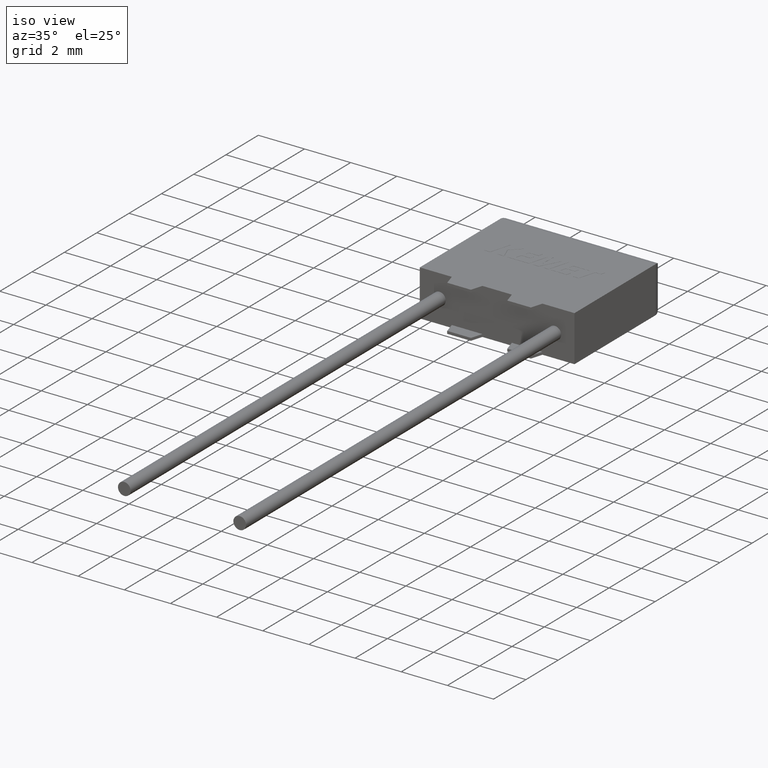
[diagram: clean part render]
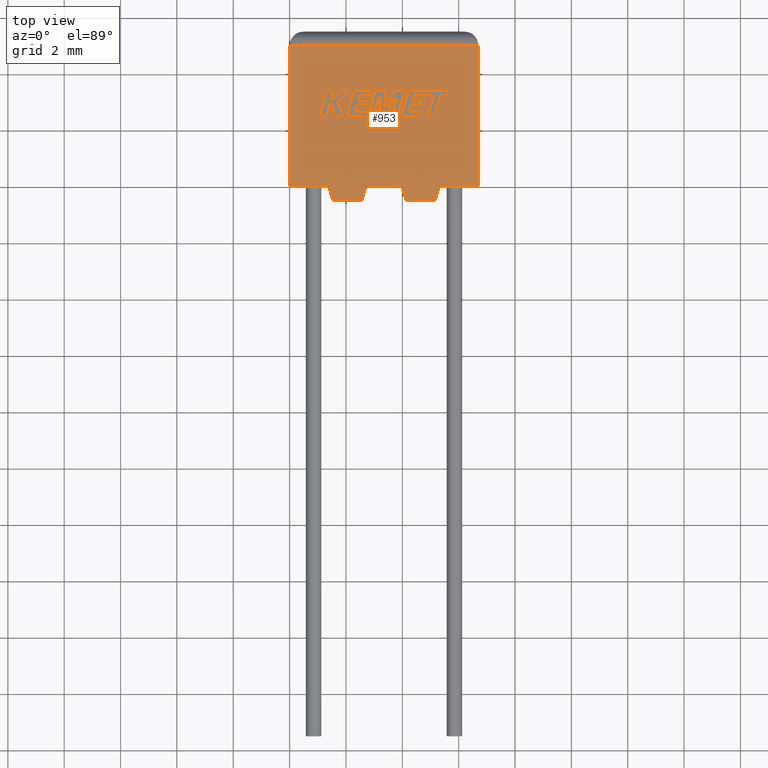
[diagram: tour spotlight — one face highlighted and labeled with its STEP entity id]
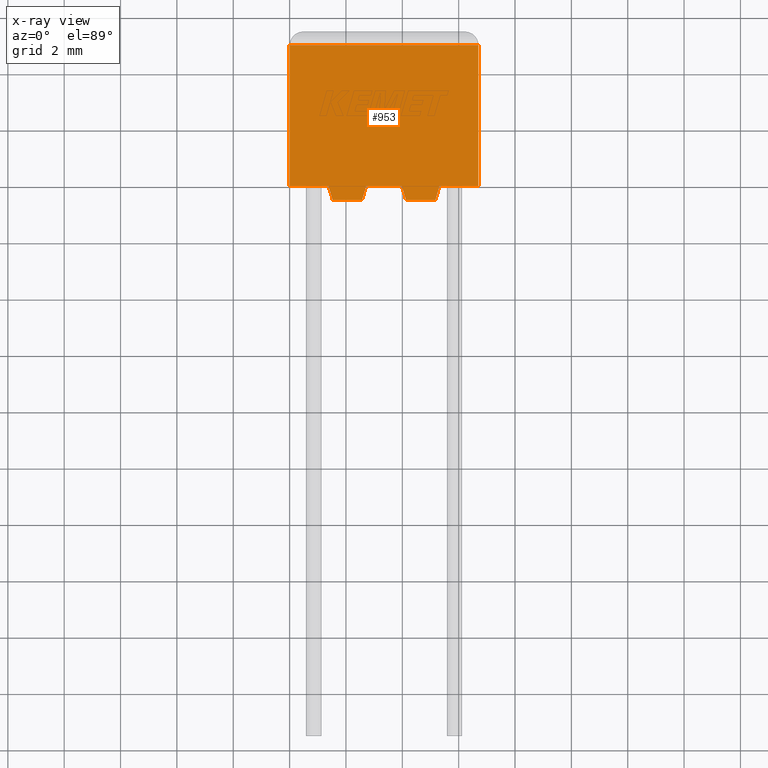
[diagram: x-ray of the same camera — body ghosted, this tour face saturated]
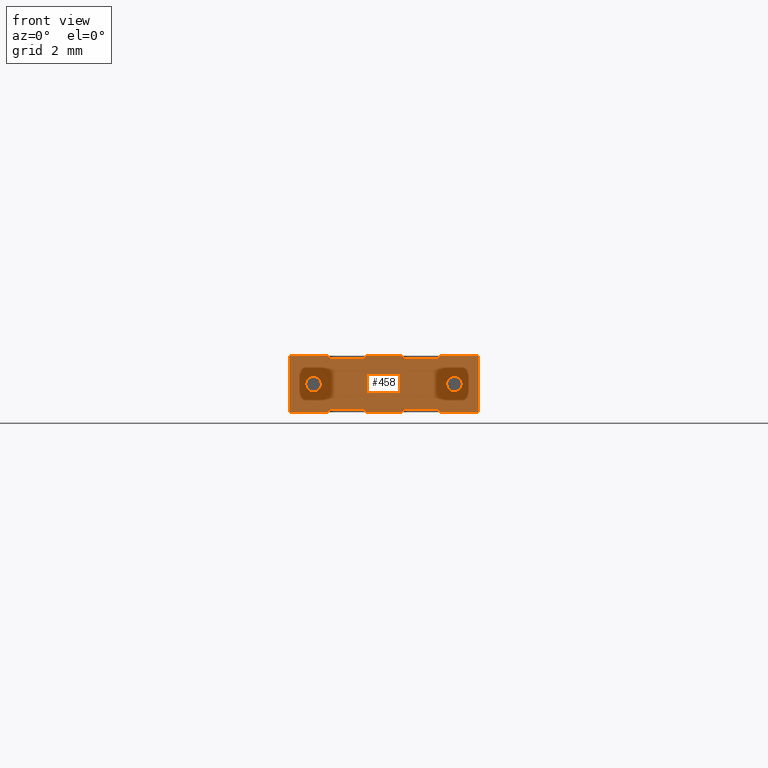
[diagram: tour spotlight — one face highlighted and labeled with its STEP entity id]
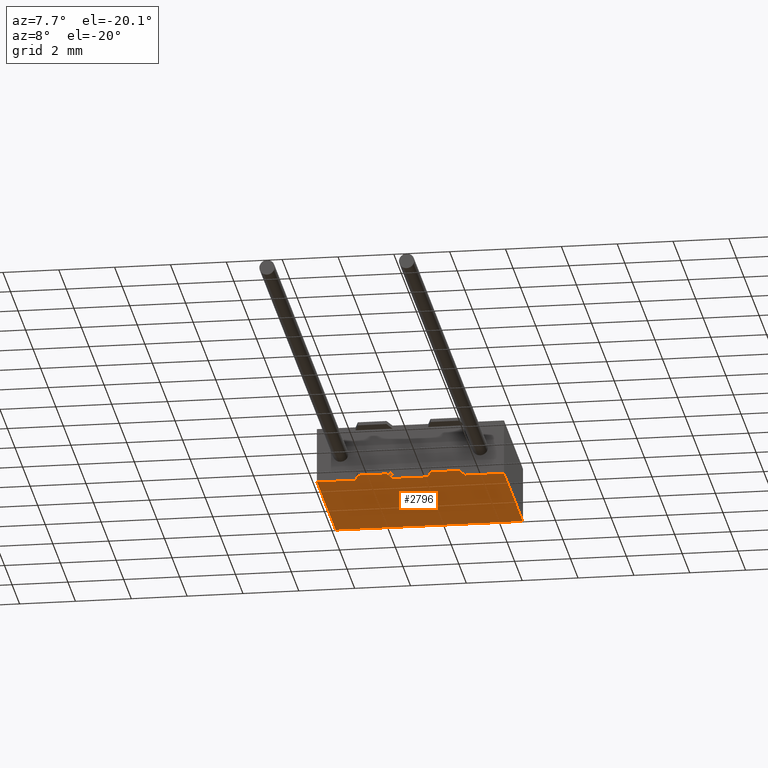
[diagram: tour spotlight — one face highlighted and labeled with its STEP entity id]
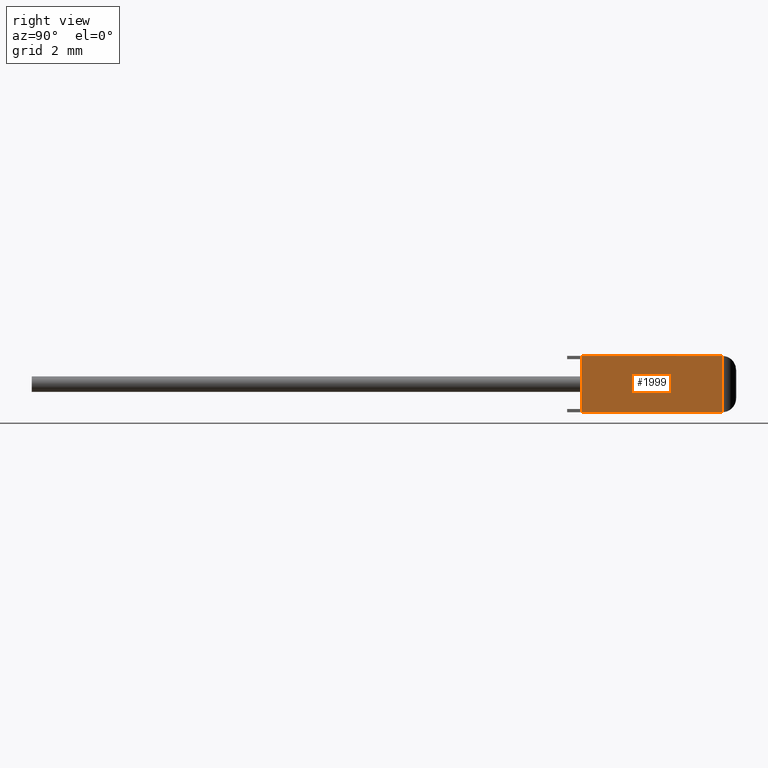
[diagram: tour spotlight — one face highlighted and labeled with its STEP entity id]
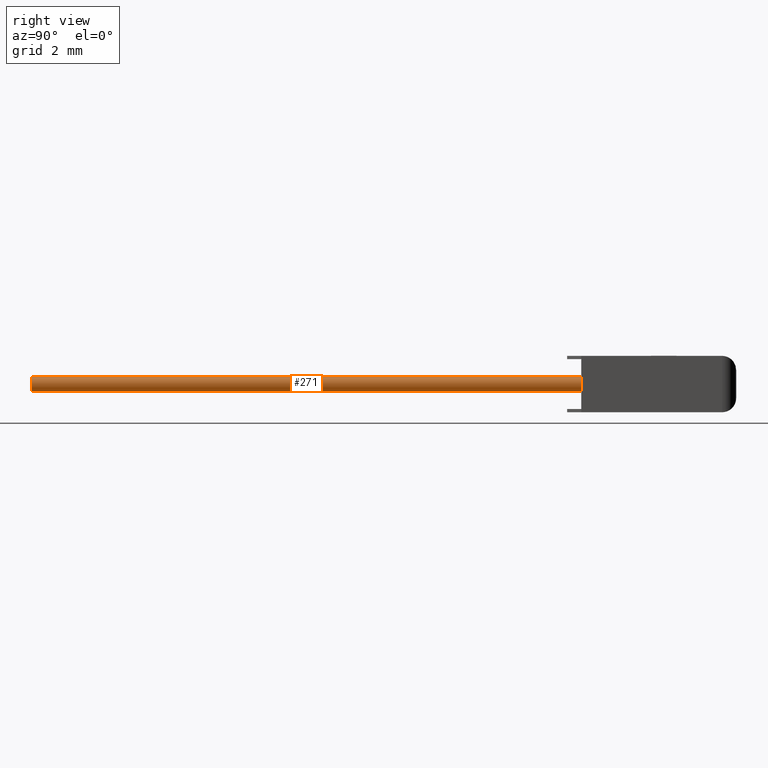
[diagram: tour spotlight — one face highlighted and labeled with its STEP entity id]
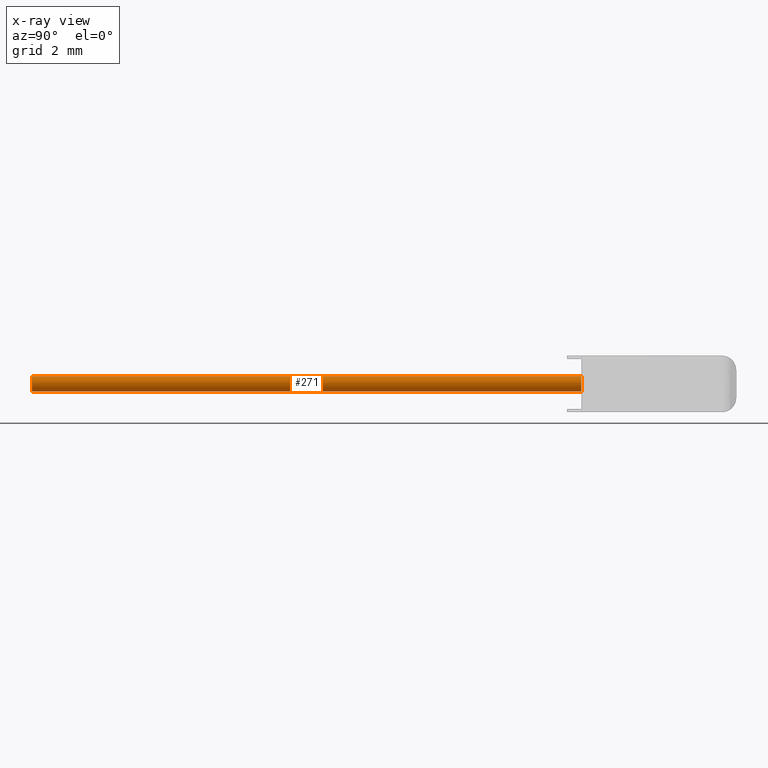
[diagram: x-ray of the same camera — body ghosted, this tour face saturated]
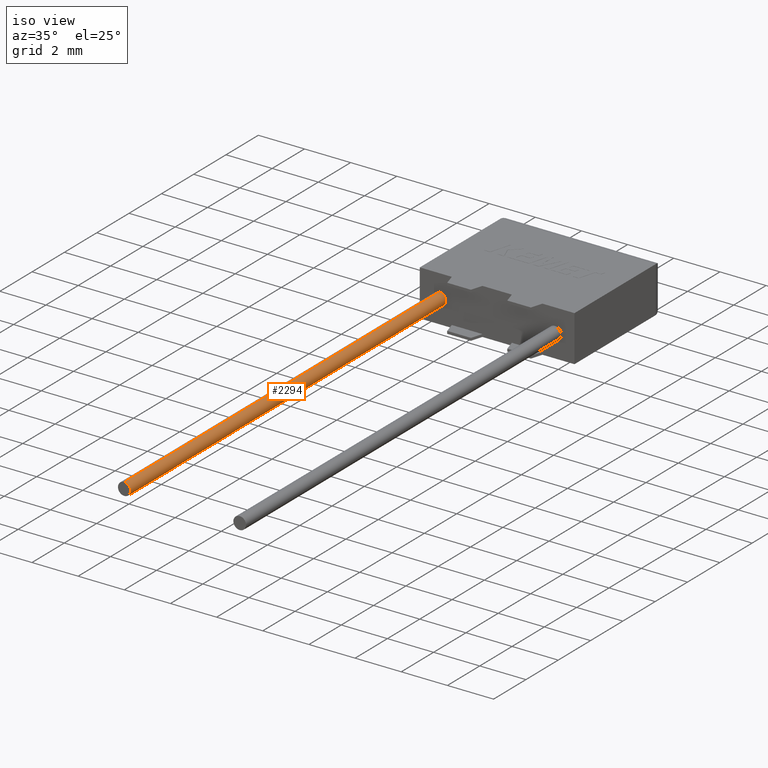
[diagram: tour spotlight — one face highlighted and labeled with its STEP entity id]
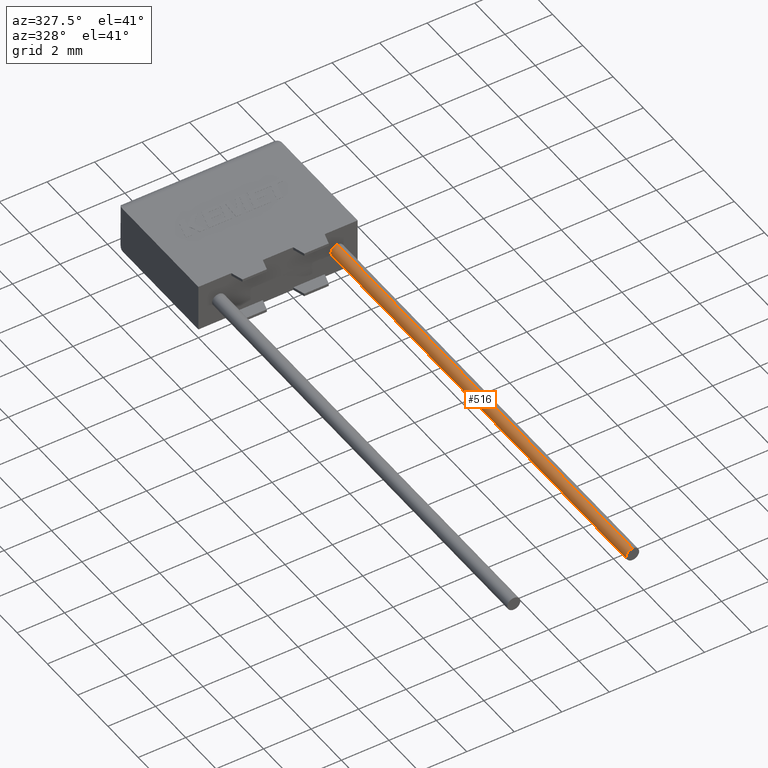
[diagram: tour spotlight — one face highlighted and labeled with its STEP entity id]
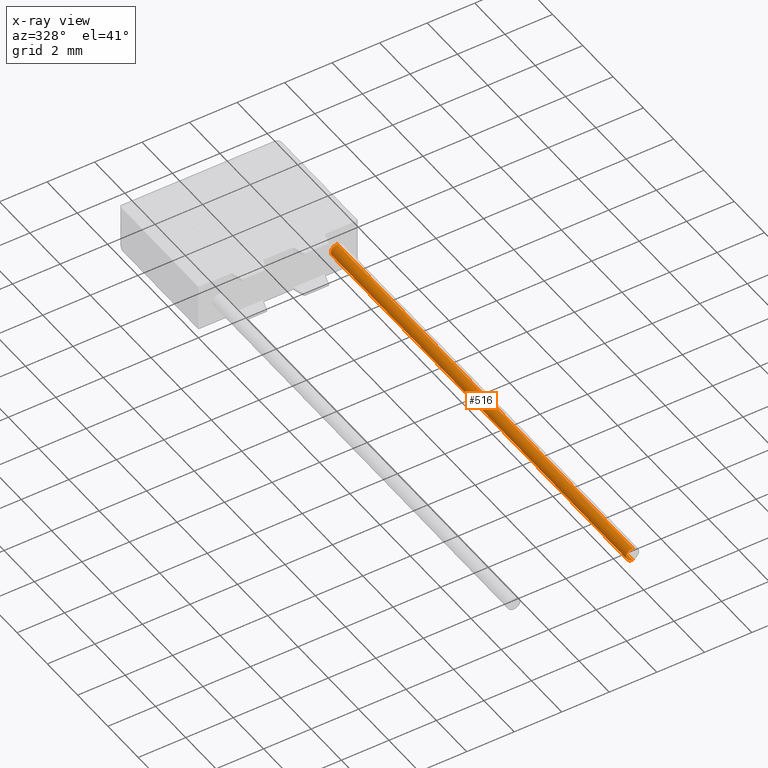
[diagram: x-ray of the same camera — body ghosted, this tour face saturated]
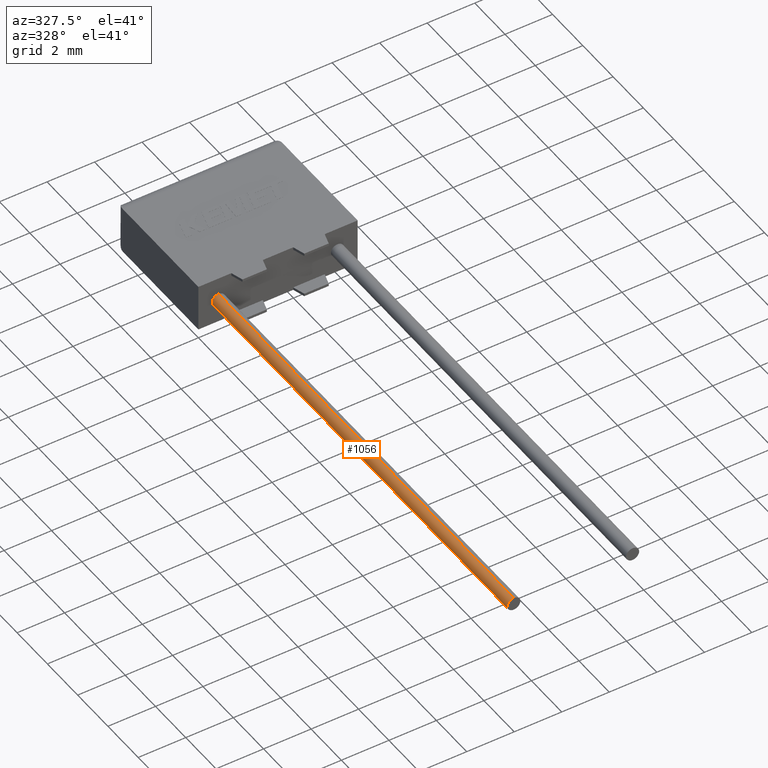
[diagram: tour spotlight — one face highlighted and labeled with its STEP entity id]
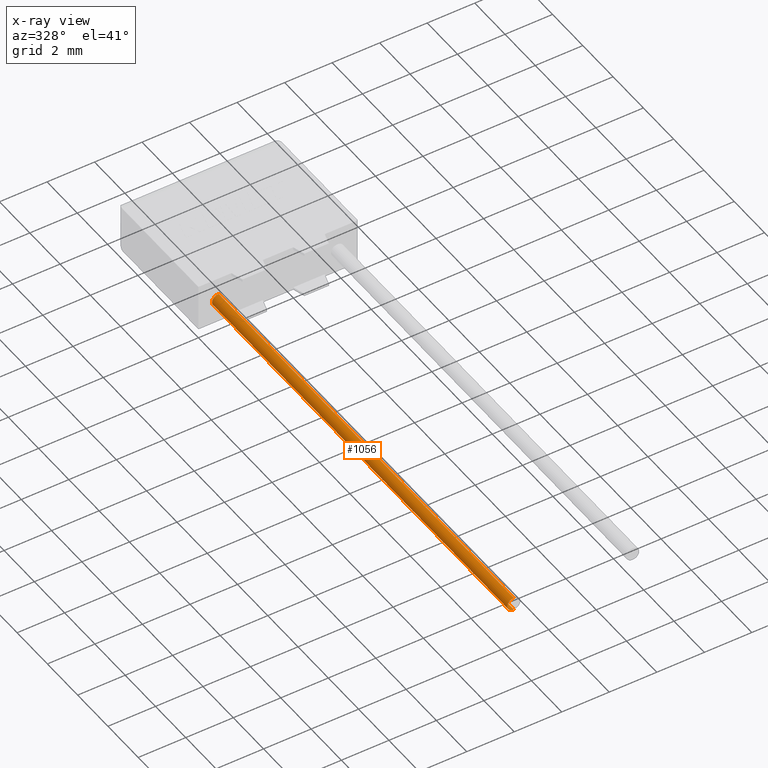
[diagram: x-ray of the same camera — body ghosted, this tour face saturated]
A machine part: a face-by-face anatomy tour. The part has 89 B-rep faces; the first image is the clean iso view, then the 8 largest visible faces are spotlighted one at a time (largest first), each with its STEP entity span.

Face 1 — top view, entity #953. An x-ray twin of the same camera follows (body ghosted, this face saturated) — the face is partly hidden behind the body. In plain terms, the highlighted planar face has unit normal (0, 0, -1).
Definition (entity closure, byte-faithful):
#43 = DIRECTION ( 'NONE',  ( -0.2873478855663453300, -0.9578262852211513200, 0.0000000000000000000 ) ) ;
#64 = DIRECTION ( 'NONE',  ( 1.000000000000000000, 0.0000000000000000000, 0.0000000000000000000 ) ) ;
#94 = CARTESIAN_POINT ( 'NONE',  ( 5.164000000000000600, -0.4999999999999998900, 2.000000000000000000 ) ) ;
#137 = VECTOR ( 'NONE', #43, 1000.000000000000200 ) ;
#142 = LINE ( 'NONE', #2981, #1221 ) ;
#179 = VERTEX_POINT ( 'NONE', #94 ) ;
#187 = LINE ( 'NONE', #959, #220 ) ;
#191 = VECTOR ( 'NONE', #1647, 1000.000000000000200 ) ;
#220 = VECTOR ( 'NONE', #2713, 1000.000000000000000 ) ;
#251 = CARTESIAN_POINT ( 'NONE',  ( 5.314000000000000900, 1.084202172485504400E-016, 2.000000000000000000 ) ) ;
#279 = DIRECTION ( 'NONE',  ( -0.0000000000000000000, -1.000000000000000000, -0.0000000000000000000 ) ) ;
#346 = VECTOR ( 'NONE', #64, 1000.000000000000000 ) ;
#359 = EDGE_CURVE ( 'NONE', #1708, #1971, #2712, .T. ) ;
#370 = DIRECTION ( 'NONE',  ( 0.2873478855663452700, 0.9578262852211513200, 0.0000000000000000000 ) ) ;
#419 = LINE ( 'NONE', #549, #191 ) ;
#420 = ORIENTED_EDGE ( 'NONE', *, *, #1151, .T. ) ;
#482 = CARTESIAN_POINT ( 'NONE',  ( 1.536000000000000000, -0.4999999999999998900, 2.000000000000000000 ) ) ;
#519 = EDGE_CURVE ( 'NONE', #2017, #607, #554, .T. ) ;
#530 = VERTEX_POINT ( 'NONE', #3195 ) ;
#538 = VERTEX_POINT ( 'NONE', #251 ) ;
#549 = CARTESIAN_POINT ( 'NONE',  ( 1.386000000000000100, 8.486802318091159900E-017, 2.000000000000000000 ) ) ;
#550 = VECTOR ( 'NONE', #279, 1000.000000000000000 ) ;
#554 = LINE ( 'NONE', #928, #1023 ) ;
#561 = EDGE_CURVE ( 'NONE', #2726, #2732, #142, .T. ) ;
#570 = ORIENTED_EDGE ( 'NONE', *, *, #2286, .T. ) ;
#592 = CARTESIAN_POINT ( 'NONE',  ( 2.561100000000000200, -0.4999999999999998900, 2.000000000000000000 ) ) ;
#607 = VERTEX_POINT ( 'NONE', #1858 ) ;
#648 = EDGE_LOOP ( 'NONE', ( #2242, #1843, #420, #570, #805, #2477, #1449, #2601, #2915, #865, #2804, #2720 ) ) ;
#739 = VECTOR ( 'NONE', #2946, 1000.000000000000000 ) ;
#805 = ORIENTED_EDGE ( 'NONE', *, *, #2384, .T. ) ;
#847 = CARTESIAN_POINT ( 'NONE',  ( 1.386000000000000100, 0.0000000000000000000, 2.000000000000000000 ) ) ;
#865 = ORIENTED_EDGE ( 'NONE', *, *, #2922, .F. ) ;
#928 = CARTESIAN_POINT ( 'NONE',  ( 4.138900000000000500, -0.4999999999999998900, 2.000000000000000000 ) ) ;
#953 = ADVANCED_FACE ( 'NONE', ( #1099 ), #2809, .F. ) ;
#959 = CARTESIAN_POINT ( 'NONE',  ( 0.0000000000000000000, 0.0000000000000000000, 2.000000000000000000 ) ) ;
#1010 = CARTESIAN_POINT ( 'NONE',  ( 0.0000000000000000000, 0.0000000000000000000, 2.000000000000000000 ) ) ;
#1023 = VECTOR ( 'NONE', #2173, 1000.000000000000200 ) ;
#1058 = CARTESIAN_POINT ( 'NONE',  ( 0.0000000000000000000, 0.0000000000000000000, 2.000000000000000000 ) ) ;
#1099 = FACE_OUTER_BOUND ( 'NONE', #648, .T. ) ;
#1151 = EDGE_CURVE ( 'NONE', #530, #2549, #2708, .T. ) ;
#1184 = CARTESIAN_POINT ( 'NONE',  ( 5.164000000000000600, -0.4999999999999998900, 2.000000000000000000 ) ) ;
#1215 = EDGE_CURVE ( 'NONE', #538, #179, #1565, .T. ) ;
#1221 = VECTOR ( 'NONE', #2271, 1000.000000000000000 ) ;
#1228 = CARTESIAN_POINT ( 'NONE',  ( 0.0000000000000000000, 0.0000000000000000000, 2.000000000000000000 ) ) ;
#1230 = VECTOR ( 'NONE', #2497, 1000.000000000000000 ) ;
#1321 = VERTEX_POINT ( 'NONE', #847 ) ;
#1408 = DIRECTION ( 'NONE',  ( -1.000000000000000000, 0.0000000000000000000, 0.0000000000000000000 ) ) ;
#1411 = AXIS2_PLACEMENT_3D ( 'NONE', #1058, #3034, #1778 ) ;
#1449 = ORIENTED_EDGE ( 'NONE', *, *, #1816, .T. ) ;
#1459 = EDGE_CURVE ( 'NONE', #1793, #607, #2705, .T. ) ;
#1501 = LINE ( 'NONE', #1184, #2592 ) ;
#1545 = CARTESIAN_POINT ( 'NONE',  ( 2.711100000000000100, 1.660069968584194800E-016, 2.000000000000000000 ) ) ;
#1555 = CARTESIAN_POINT ( 'NONE',  ( 5.314000000000000100, 8.486802318091159900E-017, 2.000000000000000000 ) ) ;
#1565 = LINE ( 'NONE', #1555, #137 ) ;
#1647 = DIRECTION ( 'NONE',  ( 0.2873478855663453300, -0.9578262852211513200, 0.0000000000000000000 ) ) ;
#1669 = LINE ( 'NONE', #1228, #346 ) ;
#1689 = CARTESIAN_POINT ( 'NONE',  ( 6.700000000000000200, 0.0000000000000000000, 2.000000000000000000 ) ) ;
#1708 = VERTEX_POINT ( 'NONE', #1993 ) ;
#1750 = CARTESIAN_POINT ( 'NONE',  ( 0.0000000000000000000, 4.999999999999999100, 2.000000000000000000 ) ) ;
#1778 = DIRECTION ( 'NONE',  ( -1.000000000000000000, 0.0000000000000000000, -0.0000000000000000000 ) ) ;
#1793 = VERTEX_POINT ( 'NONE', #1545 ) ;
#1816 = EDGE_CURVE ( 'NONE', #2732, #1793, #2852, .T. ) ;
#1843 = ORIENTED_EDGE ( 'NONE', *, *, #3134, .T. ) ;
#1858 = CARTESIAN_POINT ( 'NONE',  ( 3.988900000000000100, 1.660069968584194800E-016, 2.000000000000000000 ) ) ;
#1902 = LINE ( 'NONE', #1750, #1230 ) ;
#1927 = CARTESIAN_POINT ( 'NONE',  ( 0.0000000000000000000, 0.0000000000000000000, 2.000000000000000000 ) ) ;
#1971 = VERTEX_POINT ( 'NONE', #2631 ) ;
#1993 = CARTESIAN_POINT ( 'NONE',  ( 6.700000000000000200, 0.0000000000000000000, 2.000000000000000000 ) ) ;
#2017 = VERTEX_POINT ( 'NONE', #2912 ) ;
#2106 = VECTOR ( 'NONE', #370, 1000.000000000000200 ) ;
#2143 = DIRECTION ( 'NONE',  ( 1.000000000000000000, 0.0000000000000000000, 0.0000000000000000000 ) ) ;
#2173 = DIRECTION ( 'NONE',  ( -0.2873478855663452700, 0.9578262852211513200, 0.0000000000000000000 ) ) ;
#2226 = VECTOR ( 'NONE', #2143, 1000.000000000000000 ) ;
#2230 = CARTESIAN_POINT ( 'NONE',  ( 2.561100000000000200, -0.4999999999999998900, 2.000000000000000000 ) ) ;
#2242 = ORIENTED_EDGE ( 'NONE', *, *, #359, .T. ) ;
#2271 = DIRECTION ( 'NONE',  ( 1.000000000000000000, 0.0000000000000000000, 0.0000000000000000000 ) ) ;
#2286 = EDGE_CURVE ( 'NONE', #2549, #1321, #1669, .T. ) ;
#2384 = EDGE_CURVE ( 'NONE', #1321, #2726, #419, .T. ) ;
#2477 = ORIENTED_EDGE ( 'NONE', *, *, #561, .T. ) ;
#2497 = DIRECTION ( 'NONE',  ( -1.000000000000000000, 0.0000000000000000000, 0.0000000000000000000 ) ) ;
#2549 = VERTEX_POINT ( 'NONE', #3111 ) ;
#2592 = VECTOR ( 'NONE', #1408, 1000.000000000000000 ) ;
#2601 = ORIENTED_EDGE ( 'NONE', *, *, #1459, .T. ) ;
#2631 = CARTESIAN_POINT ( 'NONE',  ( 6.700000000000000200, 4.999999999999999100, 2.000000000000000000 ) ) ;
#2705 = LINE ( 'NONE', #1927, #2226 ) ;
#2708 = LINE ( 'NONE', #1010, #550 ) ;
#2712 = LINE ( 'NONE', #1689, #739 ) ;
#2713 = DIRECTION ( 'NONE',  ( 1.000000000000000000, 0.0000000000000000000, 0.0000000000000000000 ) ) ;
#2720 = ORIENTED_EDGE ( 'NONE', *, *, #3030, .T. ) ;
#2726 = VERTEX_POINT ( 'NONE', #482 ) ;
#2732 = VERTEX_POINT ( 'NONE', #2230 ) ;
#2804 = ORIENTED_EDGE ( 'NONE', *, *, #1215, .F. ) ;
#2809 = PLANE ( 'NONE',  #1411 ) ;
#2852 = LINE ( 'NONE', #592, #2106 ) ;
#2912 = CARTESIAN_POINT ( 'NONE',  ( 4.138900000000000500, -0.4999999999999998900, 2.000000000000000000 ) ) ;
#2915 = ORIENTED_EDGE ( 'NONE', *, *, #519, .F. ) ;
#2922 = EDGE_CURVE ( 'NONE', #179, #2017, #1501, .T. ) ;
#2946 = DIRECTION ( 'NONE',  ( 0.0000000000000000000, 1.000000000000000000, 0.0000000000000000000 ) ) ;
#2981 = CARTESIAN_POINT ( 'NONE',  ( 1.536000000000000000, -0.4999999999999998900, 2.000000000000000000 ) ) ;
#3030 = EDGE_CURVE ( 'NONE', #538, #1708, #187, .T. ) ;
#3034 = DIRECTION ( 'NONE',  ( 0.0000000000000000000, 0.0000000000000000000, -1.000000000000000000 ) ) ;
#3111 = CARTESIAN_POINT ( 'NONE',  ( 0.0000000000000000000, 0.0000000000000000000, 2.000000000000000000 ) ) ;
#3134 = EDGE_CURVE ( 'NONE', #1971, #530, #1902, .T. ) ;
#3195 = CARTESIAN_POINT ( 'NONE',  ( 0.0000000000000000000, 4.999999999999999100, 2.000000000000000000 ) ) ;

Face 2 — front view, entity #458. In plain terms, the highlighted planar face has unit normal (0, 1, 0).
Definition (entity closure, byte-faithful):
#21 = VERTEX_POINT ( 'NONE', #2045 ) ;
#35 = CARTESIAN_POINT ( 'NONE',  ( 1.386000000000000100, 8.486802318091159900E-017, 1.886000000000000100 ) ) ;
#41 = EDGE_CURVE ( 'NONE', #1969, #21, #908, .T. ) ;
#50 = DIRECTION ( 'NONE',  ( -0.0000000000000000000, -0.0000000000000000000, -1.000000000000000000 ) ) ;
#64 = DIRECTION ( 'NONE',  ( 1.000000000000000000, 0.0000000000000000000, 0.0000000000000000000 ) ) ;
#84 = CIRCLE ( 'NONE', #430, 0.2750000000000000800 ) ;
#103 = LINE ( 'NONE', #732, #3198 ) ;
#110 = CARTESIAN_POINT ( 'NONE',  ( 5.314000000000000100, 8.486802318091159900E-017, 0.0000000000000000000 ) ) ;
#124 = ORIENTED_EDGE ( 'NONE', *, *, #2971, .T. ) ;
#140 = CARTESIAN_POINT ( 'NONE',  ( 6.700000000000000200, 0.0000000000000000000, 0.0000000000000000000 ) ) ;
#187 = LINE ( 'NONE', #959, #220 ) ;
#188 = ORIENTED_EDGE ( 'NONE', *, *, #3076, .F. ) ;
#206 = CARTESIAN_POINT ( 'NONE',  ( 2.711100000000000100, 1.660069968584194800E-016, 1.886000000000000100 ) ) ;
#220 = VECTOR ( 'NONE', #2713, 1000.000000000000000 ) ;
#221 = VERTEX_POINT ( 'NONE', #140 ) ;
#236 = DIRECTION ( 'NONE',  ( 0.0000000000000000000, 0.0000000000000000000, -1.000000000000000000 ) ) ;
#246 = FACE_OUTER_BOUND ( 'NONE', #1719, .T. ) ;
#251 = CARTESIAN_POINT ( 'NONE',  ( 5.314000000000000900, 1.084202172485504400E-016, 2.000000000000000000 ) ) ;
#293 = ORIENTED_EDGE ( 'NONE', *, *, #661, .T. ) ;
#341 = CARTESIAN_POINT ( 'NONE',  ( 0.0000000000000000000, 0.0000000000000000000, 0.0000000000000000000 ) ) ;
#346 = VECTOR ( 'NONE', #64, 1000.000000000000000 ) ;
#358 = ORIENTED_EDGE ( 'NONE', *, *, #2632, .T. ) ;
#364 = LINE ( 'NONE', #1117, #2943 ) ;
#429 = LINE ( 'NONE', #815, #1048 ) ;
#430 = AXIS2_PLACEMENT_3D ( 'NONE', #2789, #1768, #3062 ) ;
#434 = DIRECTION ( 'NONE',  ( 0.0000000000000000000, 0.0000000000000000000, -1.000000000000000000 ) ) ;
#436 = VERTEX_POINT ( 'NONE', #110 ) ;
#454 = AXIS2_PLACEMENT_3D ( 'NONE', #904, #2651, #434 ) ;
#458 = ADVANCED_FACE ( 'NONE', ( #706, #246, #2126 ), #1314, .F. ) ;
#462 = DIRECTION ( 'NONE',  ( -1.000000000000000000, -6.123233995736766000E-017, 0.0000000000000000000 ) ) ;
#465 = ORIENTED_EDGE ( 'NONE', *, *, #818, .F. ) ;
#495 = EDGE_LOOP ( 'NONE', ( #962, #1368 ) ) ;
#501 = DIRECTION ( 'NONE',  ( 0.0000000000000000000, 0.0000000000000000000, 1.000000000000000000 ) ) ;
#505 = VERTEX_POINT ( 'NONE', #586 ) ;
#523 = CIRCLE ( 'NONE', #1397, 0.2750000000000000800 ) ;
#528 = CIRCLE ( 'NONE', #454, 0.2750000000000000800 ) ;
#529 = CARTESIAN_POINT ( 'NONE',  ( 1.386000000000000100, 8.486802318091159900E-017, 0.1140000000000000000 ) ) ;
#534 = LINE ( 'NONE', #829, #1905 ) ;
#538 = VERTEX_POINT ( 'NONE', #251 ) ;
#576 = CARTESIAN_POINT ( 'NONE',  ( 0.8500000000000000900, 0.0000000000000000000, 1.000000000000000200 ) ) ;
#582 = VECTOR ( 'NONE', #1840, 1000.000000000000000 ) ;
#586 = CARTESIAN_POINT ( 'NONE',  ( 2.711100000000000100, 1.660069968584194800E-016, 0.0000000000000000000 ) ) ;
#605 = VERTEX_POINT ( 'NONE', #861 ) ;
#607 = VERTEX_POINT ( 'NONE', #1858 ) ;
#609 = VECTOR ( 'NONE', #3024, 1000.000000000000000 ) ;
#620 = ORIENTED_EDGE ( 'NONE', *, *, #2786, .T. ) ;
#660 = VERTEX_POINT ( 'NONE', #2569 ) ;
#661 = EDGE_CURVE ( 'NONE', #436, #221, #1385, .T. ) ;
#695 = CARTESIAN_POINT ( 'NONE',  ( 5.850000000000000500, 0.0000000000000000000, 1.000000000000000200 ) ) ;
#706 = FACE_BOUND ( 'NONE', #883, .T. ) ;
#717 = ORIENTED_EDGE ( 'NONE', *, *, #1459, .F. ) ;
#730 = CARTESIAN_POINT ( 'NONE',  ( 5.314000000000000100, 8.486802318091159900E-017, 1.886000000000000100 ) ) ;
#732 = CARTESIAN_POINT ( 'NONE',  ( 1.386000000000000100, 8.486802318091159900E-017, 0.1140000000000000000 ) ) ;
#772 = CARTESIAN_POINT ( 'NONE',  ( 3.988900000000000100, 0.0000000000000000000, 0.0000000000000000000 ) ) ;
#784 = VERTEX_POINT ( 'NONE', #864 ) ;
#788 = VECTOR ( 'NONE', #1920, 1000.000000000000000 ) ;
#801 = CARTESIAN_POINT ( 'NONE',  ( 3.988900000000000100, 1.660069968584194800E-016, 1.886000000000000100 ) ) ;
#815 = CARTESIAN_POINT ( 'NONE',  ( 5.314000000000000100, 8.486802318091159900E-017, 0.1140000000000000000 ) ) ;
#818 = EDGE_CURVE ( 'NONE', #1680, #538, #364, .T. ) ;
#829 = CARTESIAN_POINT ( 'NONE',  ( 3.988900000000000100, 1.660069968584194800E-016, 1.886000000000000100 ) ) ;
#840 = EDGE_CURVE ( 'NONE', #2648, #2335, #1420, .T. ) ;
#845 = DIRECTION ( 'NONE',  ( 0.0000000000000000000, 1.000000000000000000, 0.0000000000000000000 ) ) ;
#847 = CARTESIAN_POINT ( 'NONE',  ( 1.386000000000000100, 0.0000000000000000000, 2.000000000000000000 ) ) ;
#861 = CARTESIAN_POINT ( 'NONE',  ( 1.386000000000000300, -2.710505431213761100E-017, 0.0000000000000000000 ) ) ;
#864 = CARTESIAN_POINT ( 'NONE',  ( 5.850000000000000500, 0.0000000000000000000, 1.275000000000000400 ) ) ;
#881 = CARTESIAN_POINT ( 'NONE',  ( 0.0000000000000000000, 0.0000000000000000000, 0.0000000000000000000 ) ) ;
#883 = EDGE_LOOP ( 'NONE', ( #2526, #124 ) ) ;
#899 = CARTESIAN_POINT ( 'NONE',  ( 0.8500000000000000900, 0.0000000000000000000, 0.7250000000000002000 ) ) ;
#904 = CARTESIAN_POINT ( 'NONE',  ( 5.850000000000000500, 0.0000000000000000000, 1.000000000000000200 ) ) ;
#907 = CARTESIAN_POINT ( 'NONE',  ( 3.988900000000000100, 0.0000000000000000000, 0.1139999999999999500 ) ) ;
#908 = CIRCLE ( 'NONE', #940, 0.2750000000000000800 ) ;
#914 = CARTESIAN_POINT ( 'NONE',  ( 1.386000000000000100, 0.0000000000000000000, 0.1139999999999999500 ) ) ;
#927 = VERTEX_POINT ( 'NONE', #1531 ) ;
#940 = AXIS2_PLACEMENT_3D ( 'NONE', #576, #2282, #2822 ) ;
#959 = CARTESIAN_POINT ( 'NONE',  ( 0.0000000000000000000, 0.0000000000000000000, 2.000000000000000000 ) ) ;
#962 = ORIENTED_EDGE ( 'NONE', *, *, #1693, .F. ) ;
#969 = VERTEX_POINT ( 'NONE', #801 ) ;
#1038 = EDGE_CURVE ( 'NONE', #927, #436, #1925, .T. ) ;
#1048 = VECTOR ( 'NONE', #2088, 1000.000000000000000 ) ;
#1070 = VERTEX_POINT ( 'NONE', #1698 ) ;
#1085 = EDGE_CURVE ( 'NONE', #1070, #1479, #3056, .T. ) ;
#1091 = CARTESIAN_POINT ( 'NONE',  ( 1.386000000000000100, 8.486802318091159900E-017, 1.886000000000000100 ) ) ;
#1101 = DIRECTION ( 'NONE',  ( 1.000000000000000000, 0.0000000000000000000, 0.0000000000000000000 ) ) ;
#1117 = CARTESIAN_POINT ( 'NONE',  ( 5.314000000000000100, 8.486802318091159900E-017, 1.886000000000000100 ) ) ;
#1146 = VECTOR ( 'NONE', #462, 1000.000000000000000 ) ;
#1149 = CARTESIAN_POINT ( 'NONE',  ( 5.314000000000000100, 8.486802318091159900E-017, 0.1140000000000000000 ) ) ;
#1228 = CARTESIAN_POINT ( 'NONE',  ( 0.0000000000000000000, 0.0000000000000000000, 2.000000000000000000 ) ) ;
#1275 = CARTESIAN_POINT ( 'NONE',  ( 6.700000000000000200, 0.0000000000000000000, 2.000000000000000000 ) ) ;
#1314 = PLANE ( 'NONE',  #2421 ) ;
#1321 = VERTEX_POINT ( 'NONE', #847 ) ;
#1323 = VECTOR ( 'NONE', #3121, 1000.000000000000000 ) ;
#1333 = VECTOR ( 'NONE', #2415, 1000.000000000000000 ) ;
#1365 = ORIENTED_EDGE ( 'NONE', *, *, #2286, .F. ) ;
#1368 = ORIENTED_EDGE ( 'NONE', *, *, #41, .F. ) ;
#1385 = LINE ( 'NONE', #341, #2672 ) ;
#1397 = AXIS2_PLACEMENT_3D ( 'NONE', #695, #2953, #2975 ) ;
#1420 = LINE ( 'NONE', #1874, #1610 ) ;
#1459 = EDGE_CURVE ( 'NONE', #1793, #607, #2705, .T. ) ;
#1472 = LINE ( 'NONE', #881, #788 ) ;
#1479 = VERTEX_POINT ( 'NONE', #914 ) ;
#1531 = CARTESIAN_POINT ( 'NONE',  ( 5.314000000000000100, 0.0000000000000000000, 0.1139999999999999500 ) ) ;
#1545 = CARTESIAN_POINT ( 'NONE',  ( 2.711100000000000100, 1.660069968584194800E-016, 2.000000000000000000 ) ) ;
#1547 = VECTOR ( 'NONE', #2660, 1000.000000000000000 ) ;
#1552 = CARTESIAN_POINT ( 'NONE',  ( 0.0000000000000000000, 0.0000000000000000000, 2.000000000000000000 ) ) ;
#1560 = ORIENTED_EDGE ( 'NONE', *, *, #2418, .F. ) ;
#1610 = VECTOR ( 'NONE', #2357, 1000.000000000000000 ) ;
#1613 = DIRECTION ( 'NONE',  ( 0.0000000000000000000, 0.0000000000000000000, 1.000000000000000000 ) ) ;
#1657 = ORIENTED_EDGE ( 'NONE', *, *, #2490, .F. ) ;
#1669 = LINE ( 'NONE', #1228, #346 ) ;
#1680 = VERTEX_POINT ( 'NONE', #1748 ) ;
#1693 = EDGE_CURVE ( 'NONE', #21, #1969, #84, .T. ) ;
#1698 = CARTESIAN_POINT ( 'NONE',  ( 2.711100000000000100, 0.0000000000000000000, 0.1139999999999999500 ) ) ;
#1708 = VERTEX_POINT ( 'NONE', #1993 ) ;
#1717 = LINE ( 'NONE', #2832, #1323 ) ;
#1719 = EDGE_LOOP ( 'NONE', ( #2174, #2650, #2799, #620, #3117, #2883, #2771, #293, #188, #2419, #465, #1657, #1865, #717, #1560, #2718, #358, #1365, #2911, #2144 ) ) ;
#1748 = CARTESIAN_POINT ( 'NONE',  ( 5.314000000000000100, 8.486802318091159900E-017, 1.886000000000000100 ) ) ;
#1749 = VERTEX_POINT ( 'NONE', #35 ) ;
#1758 = DIRECTION ( 'NONE',  ( 1.000000000000000000, -6.123233995736766000E-017, -0.0000000000000000000 ) ) ;
#1760 = CARTESIAN_POINT ( 'NONE',  ( 0.0000000000000000000, 0.0000000000000000000, 2.000000000000000000 ) ) ;
#1768 = DIRECTION ( 'NONE',  ( -0.0000000000000000000, -1.000000000000000000, -0.0000000000000000000 ) ) ;
#1773 = VERTEX_POINT ( 'NONE', #2534 ) ;
#1793 = VERTEX_POINT ( 'NONE', #1545 ) ;
#1840 = DIRECTION ( 'NONE',  ( -1.000000000000000000, -6.123233995736766000E-017, -0.0000000000000000000 ) ) ;
#1844 = EDGE_CURVE ( 'NONE', #2471, #605, #1717, .T. ) ;
#1858 = CARTESIAN_POINT ( 'NONE',  ( 3.988900000000000100, 1.660069968584194800E-016, 2.000000000000000000 ) ) ;
#1865 = ORIENTED_EDGE ( 'NONE', *, *, #2540, .T. ) ;
#1874 = CARTESIAN_POINT ( 'NONE',  ( 3.988900000000000100, 1.660069968584194800E-016, 0.1140000000000000000 ) ) ;
#1904 = EDGE_CURVE ( 'NONE', #2648, #927, #429, .T. ) ;
#1905 = VECTOR ( 'NONE', #2121, 1000.000000000000000 ) ;
#1920 = DIRECTION ( 'NONE',  ( 1.000000000000000000, 0.0000000000000000000, 0.0000000000000000000 ) ) ;
#1925 = LINE ( 'NONE', #1149, #1333 ) ;
#1926 = EDGE_CURVE ( 'NONE', #1773, #1749, #2613, .T. ) ;
#1927 = CARTESIAN_POINT ( 'NONE',  ( 0.0000000000000000000, 0.0000000000000000000, 2.000000000000000000 ) ) ;
#1969 = VERTEX_POINT ( 'NONE', #899 ) ;
#1993 = CARTESIAN_POINT ( 'NONE',  ( 6.700000000000000200, 0.0000000000000000000, 2.000000000000000000 ) ) ;
#1997 = CARTESIAN_POINT ( 'NONE',  ( 1.386000000000000100, 8.486802318091159900E-017, 1.886000000000000100 ) ) ;
#2045 = CARTESIAN_POINT ( 'NONE',  ( 0.8500000000000000900, 0.0000000000000000000, 1.275000000000000400 ) ) ;
#2088 = DIRECTION ( 'NONE',  ( 1.000000000000000000, -6.123233995736766000E-017, 0.0000000000000000000 ) ) ;
#2121 = DIRECTION ( 'NONE',  ( 0.0000000000000000000, 0.0000000000000000000, 1.000000000000000000 ) ) ;
#2126 = FACE_BOUND ( 'NONE', #495, .T. ) ;
#2143 = DIRECTION ( 'NONE',  ( 1.000000000000000000, 0.0000000000000000000, 0.0000000000000000000 ) ) ;
#2144 = ORIENTED_EDGE ( 'NONE', *, *, #1844, .T. ) ;
#2174 = ORIENTED_EDGE ( 'NONE', *, *, #3007, .F. ) ;
#2226 = VECTOR ( 'NONE', #2143, 1000.000000000000000 ) ;
#2239 = CARTESIAN_POINT ( 'NONE',  ( 2.711100000000000100, 1.660069968584194800E-016, 0.1140000000000000000 ) ) ;
#2249 = LINE ( 'NONE', #206, #1547 ) ;
#2282 = DIRECTION ( 'NONE',  ( -0.0000000000000000000, -1.000000000000000000, -0.0000000000000000000 ) ) ;
#2286 = EDGE_CURVE ( 'NONE', #2549, #1321, #1669, .T. ) ;
#2335 = VERTEX_POINT ( 'NONE', #772 ) ;
#2357 = DIRECTION ( 'NONE',  ( 0.0000000000000000000, 0.0000000000000000000, -1.000000000000000000 ) ) ;
#2366 = LINE ( 'NONE', #1275, #609 ) ;
#2415 = DIRECTION ( 'NONE',  ( 0.0000000000000000000, 0.0000000000000000000, -1.000000000000000000 ) ) ;
#2418 = EDGE_CURVE ( 'NONE', #1773, #1793, #2249, .T. ) ;
#2419 = ORIENTED_EDGE ( 'NONE', *, *, #3030, .F. ) ;
#2421 = AXIS2_PLACEMENT_3D ( 'NONE', #1552, #845, #2599 ) ;
#2471 = VERTEX_POINT ( 'NONE', #2933 ) ;
#2490 = EDGE_CURVE ( 'NONE', #969, #1680, #3206, .T. ) ;
#2502 = DIRECTION ( 'NONE',  ( 0.0000000000000000000, 0.0000000000000000000, -1.000000000000000000 ) ) ;
#2526 = ORIENTED_EDGE ( 'NONE', *, *, #2900, .T. ) ;
#2534 = CARTESIAN_POINT ( 'NONE',  ( 2.711100000000000100, 1.660069968584194800E-016, 1.886000000000000100 ) ) ;
#2540 = EDGE_CURVE ( 'NONE', #969, #607, #534, .T. ) ;
#2549 = VERTEX_POINT ( 'NONE', #3111 ) ;
#2569 = CARTESIAN_POINT ( 'NONE',  ( 5.850000000000000500, 0.0000000000000000000, 0.7250000000000002000 ) ) ;
#2599 = DIRECTION ( 'NONE',  ( 0.0000000000000000000, -0.0000000000000000000, 1.000000000000000000 ) ) ;
#2603 = VECTOR ( 'NONE', #1758, 1000.000000000000000 ) ;
#2613 = LINE ( 'NONE', #1091, #582 ) ;
#2615 = EDGE_CURVE ( 'NONE', #1070, #505, #2841, .T. ) ;
#2632 = EDGE_CURVE ( 'NONE', #1749, #1321, #2806, .T. ) ;
#2645 = VECTOR ( 'NONE', #2502, 1000.000000000000000 ) ;
#2648 = VERTEX_POINT ( 'NONE', #907 ) ;
#2650 = ORIENTED_EDGE ( 'NONE', *, *, #1085, .F. ) ;
#2651 = DIRECTION ( 'NONE',  ( -0.0000000000000000000, 1.000000000000000000, -0.0000000000000000000 ) ) ;
#2660 = DIRECTION ( 'NONE',  ( 0.0000000000000000000, 0.0000000000000000000, 1.000000000000000000 ) ) ;
#2672 = VECTOR ( 'NONE', #1101, 1000.000000000000000 ) ;
#2686 = LINE ( 'NONE', #1760, #3122 ) ;
#2705 = LINE ( 'NONE', #1927, #2226 ) ;
#2713 = DIRECTION ( 'NONE',  ( 1.000000000000000000, 0.0000000000000000000, 0.0000000000000000000 ) ) ;
#2718 = ORIENTED_EDGE ( 'NONE', *, *, #1926, .T. ) ;
#2771 = ORIENTED_EDGE ( 'NONE', *, *, #1038, .T. ) ;
#2786 = EDGE_CURVE ( 'NONE', #505, #2335, #1472, .T. ) ;
#2789 = CARTESIAN_POINT ( 'NONE',  ( 0.8500000000000000900, 0.0000000000000000000, 1.000000000000000200 ) ) ;
#2799 = ORIENTED_EDGE ( 'NONE', *, *, #2615, .T. ) ;
#2806 = LINE ( 'NONE', #1997, #3240 ) ;
#2822 = DIRECTION ( 'NONE',  ( 0.0000000000000000000, 0.0000000000000000000, 1.000000000000000000 ) ) ;
#2832 = CARTESIAN_POINT ( 'NONE',  ( 0.0000000000000000000, 0.0000000000000000000, 0.0000000000000000000 ) ) ;
#2841 = LINE ( 'NONE', #2239, #2645 ) ;
#2883 = ORIENTED_EDGE ( 'NONE', *, *, #1904, .T. ) ;
#2900 = EDGE_CURVE ( 'NONE', #784, #660, #528, .T. ) ;
#2911 = ORIENTED_EDGE ( 'NONE', *, *, #3228, .T. ) ;
#2933 = CARTESIAN_POINT ( 'NONE',  ( 0.0000000000000000000, 0.0000000000000000000, 0.0000000000000000000 ) ) ;
#2943 = VECTOR ( 'NONE', #1613, 1000.000000000000000 ) ;
#2953 = DIRECTION ( 'NONE',  ( -0.0000000000000000000, 1.000000000000000000, -0.0000000000000000000 ) ) ;
#2971 = EDGE_CURVE ( 'NONE', #660, #784, #523, .T. ) ;
#2975 = DIRECTION ( 'NONE',  ( 0.0000000000000000000, 0.0000000000000000000, -1.000000000000000000 ) ) ;
#3007 = EDGE_CURVE ( 'NONE', #1479, #605, #103, .T. ) ;
#3024 = DIRECTION ( 'NONE',  ( -0.0000000000000000000, -0.0000000000000000000, -1.000000000000000000 ) ) ;
#3030 = EDGE_CURVE ( 'NONE', #538, #1708, #187, .T. ) ;
#3056 = LINE ( 'NONE', #529, #1146 ) ;
#3062 = DIRECTION ( 'NONE',  ( 0.0000000000000000000, 0.0000000000000000000, 1.000000000000000000 ) ) ;
#3076 = EDGE_CURVE ( 'NONE', #1708, #221, #2366, .T. ) ;
#3111 = CARTESIAN_POINT ( 'NONE',  ( 0.0000000000000000000, 0.0000000000000000000, 2.000000000000000000 ) ) ;
#3117 = ORIENTED_EDGE ( 'NONE', *, *, #840, .F. ) ;
#3121 = DIRECTION ( 'NONE',  ( 1.000000000000000000, 0.0000000000000000000, 0.0000000000000000000 ) ) ;
#3122 = VECTOR ( 'NONE', #50, 1000.000000000000000 ) ;
#3198 = VECTOR ( 'NONE', #236, 1000.000000000000000 ) ;
#3206 = LINE ( 'NONE', #730, #2603 ) ;
#3228 = EDGE_CURVE ( 'NONE', #2549, #2471, #2686, .T. ) ;
#3240 = VECTOR ( 'NONE', #501, 1000.000000000000000 ) ;

Face 3 — auxiliary view, entity #2796. In plain terms, the highlighted planar face has unit normal (0, 0, -1).
Definition (entity closure, byte-faithful):
#36 = VECTOR ( 'NONE', #2926, 1000.000000000000000 ) ;
#37 = LINE ( 'NONE', #354, #3001 ) ;
#40 = ORIENTED_EDGE ( 'NONE', *, *, #1737, .T. ) ;
#110 = CARTESIAN_POINT ( 'NONE',  ( 5.314000000000000100, 8.486802318091159900E-017, 0.0000000000000000000 ) ) ;
#111 = ORIENTED_EDGE ( 'NONE', *, *, #1892, .F. ) ;
#140 = CARTESIAN_POINT ( 'NONE',  ( 6.700000000000000200, 0.0000000000000000000, 0.0000000000000000000 ) ) ;
#202 = DIRECTION ( 'NONE',  ( 0.2873478855663453300, -0.9578262852211513200, 0.0000000000000000000 ) ) ;
#205 = VERTEX_POINT ( 'NONE', #2565 ) ;
#221 = VERTEX_POINT ( 'NONE', #140 ) ;
#341 = CARTESIAN_POINT ( 'NONE',  ( 0.0000000000000000000, 0.0000000000000000000, 0.0000000000000000000 ) ) ;
#354 = CARTESIAN_POINT ( 'NONE',  ( 2.561100000000000200, -0.4999999999999998900, 0.0000000000000000000 ) ) ;
#374 = ORIENTED_EDGE ( 'NONE', *, *, #1844, .F. ) ;
#436 = VERTEX_POINT ( 'NONE', #110 ) ;
#457 = LINE ( 'NONE', #2886, #747 ) ;
#505 = VERTEX_POINT ( 'NONE', #586 ) ;
#586 = CARTESIAN_POINT ( 'NONE',  ( 2.711100000000000100, 1.660069968584194800E-016, 0.0000000000000000000 ) ) ;
#587 = VECTOR ( 'NONE', #2210, 1000.000000000000000 ) ;
#605 = VERTEX_POINT ( 'NONE', #861 ) ;
#628 = VERTEX_POINT ( 'NONE', #1322 ) ;
#647 = FACE_OUTER_BOUND ( 'NONE', #2519, .T. ) ;
#651 = DIRECTION ( 'NONE',  ( 0.2873478855663452700, 0.9578262852211513200, 0.0000000000000000000 ) ) ;
#661 = EDGE_CURVE ( 'NONE', #436, #221, #1385, .T. ) ;
#745 = VERTEX_POINT ( 'NONE', #2826 ) ;
#747 = VECTOR ( 'NONE', #2161, 1000.000000000000200 ) ;
#772 = CARTESIAN_POINT ( 'NONE',  ( 3.988900000000000100, 0.0000000000000000000, 0.0000000000000000000 ) ) ;
#788 = VECTOR ( 'NONE', #1920, 1000.000000000000000 ) ;
#807 = LINE ( 'NONE', #2304, #1640 ) ;
#823 = DIRECTION ( 'NONE',  ( 0.0000000000000000000, 1.000000000000000000, 0.0000000000000000000 ) ) ;
#861 = CARTESIAN_POINT ( 'NONE',  ( 1.386000000000000300, -2.710505431213761100E-017, 0.0000000000000000000 ) ) ;
#881 = CARTESIAN_POINT ( 'NONE',  ( 0.0000000000000000000, 0.0000000000000000000, 0.0000000000000000000 ) ) ;
#922 = CARTESIAN_POINT ( 'NONE',  ( 5.164000000000000600, -0.4999999999999998900, 0.0000000000000000000 ) ) ;
#947 = CARTESIAN_POINT ( 'NONE',  ( 0.0000000000000000000, 4.999999999999999100, 0.0000000000000000000 ) ) ;
#968 = CARTESIAN_POINT ( 'NONE',  ( 6.700000000000000200, 4.999999999999999100, 0.0000000000000000000 ) ) ;
#1013 = CARTESIAN_POINT ( 'NONE',  ( 4.138900000000000500, -0.4999999999999998900, 0.0000000000000000000 ) ) ;
#1101 = DIRECTION ( 'NONE',  ( 1.000000000000000000, 0.0000000000000000000, 0.0000000000000000000 ) ) ;
#1137 = CARTESIAN_POINT ( 'NONE',  ( 0.0000000000000000000, 0.0000000000000000000, 0.0000000000000000000 ) ) ;
#1158 = ORIENTED_EDGE ( 'NONE', *, *, #2193, .T. ) ;
#1207 = ORIENTED_EDGE ( 'NONE', *, *, #3192, .F. ) ;
#1254 = DIRECTION ( 'NONE',  ( -0.0000000000000000000, -1.000000000000000000, -0.0000000000000000000 ) ) ;
#1259 = DIRECTION ( 'NONE',  ( -0.2873478855663452700, 0.9578262852211513200, 0.0000000000000000000 ) ) ;
#1266 = EDGE_CURVE ( 'NONE', #221, #1948, #807, .T. ) ;
#1322 = CARTESIAN_POINT ( 'NONE',  ( 1.536000000000000000, -0.4999999999999998900, 0.0000000000000000000 ) ) ;
#1323 = VECTOR ( 'NONE', #3121, 1000.000000000000000 ) ;
#1385 = LINE ( 'NONE', #341, #2672 ) ;
#1394 = ORIENTED_EDGE ( 'NONE', *, *, #2786, .F. ) ;
#1432 = LINE ( 'NONE', #2513, #2803 ) ;
#1472 = LINE ( 'NONE', #881, #788 ) ;
#1538 = ORIENTED_EDGE ( 'NONE', *, *, #2737, .F. ) ;
#1557 = VECTOR ( 'NONE', #2105, 1000.000000000000000 ) ;
#1606 = EDGE_CURVE ( 'NONE', #2439, #1948, #1841, .T. ) ;
#1640 = VECTOR ( 'NONE', #823, 1000.000000000000000 ) ;
#1659 = LINE ( 'NONE', #2960, #1706 ) ;
#1664 = CARTESIAN_POINT ( 'NONE',  ( 6.700000000000000200, 4.999999999999999100, 0.0000000000000000000 ) ) ;
#1706 = VECTOR ( 'NONE', #202, 1000.000000000000200 ) ;
#1717 = LINE ( 'NONE', #2832, #1323 ) ;
#1737 = EDGE_CURVE ( 'NONE', #205, #2335, #2931, .T. ) ;
#1841 = LINE ( 'NONE', #968, #587 ) ;
#1844 = EDGE_CURVE ( 'NONE', #2471, #605, #1717, .T. ) ;
#1879 = LINE ( 'NONE', #3071, #1557 ) ;
#1892 = EDGE_CURVE ( 'NONE', #628, #2570, #1879, .T. ) ;
#1920 = DIRECTION ( 'NONE',  ( 1.000000000000000000, 0.0000000000000000000, 0.0000000000000000000 ) ) ;
#1948 = VERTEX_POINT ( 'NONE', #1664 ) ;
#1963 = EDGE_CURVE ( 'NONE', #2570, #505, #37, .T. ) ;
#1988 = ORIENTED_EDGE ( 'NONE', *, *, #1606, .T. ) ;
#2010 = ORIENTED_EDGE ( 'NONE', *, *, #1963, .F. ) ;
#2015 = LINE ( 'NONE', #922, #36 ) ;
#2105 = DIRECTION ( 'NONE',  ( 1.000000000000000000, 0.0000000000000000000, 0.0000000000000000000 ) ) ;
#2161 = DIRECTION ( 'NONE',  ( -0.2873478855663453300, -0.9578262852211513200, 0.0000000000000000000 ) ) ;
#2166 = ORIENTED_EDGE ( 'NONE', *, *, #661, .F. ) ;
#2185 = VECTOR ( 'NONE', #1259, 1000.000000000000200 ) ;
#2193 = EDGE_CURVE ( 'NONE', #745, #205, #2015, .T. ) ;
#2210 = DIRECTION ( 'NONE',  ( 1.000000000000000000, -0.0000000000000000000, -0.0000000000000000000 ) ) ;
#2225 = DIRECTION ( 'NONE',  ( 0.0000000000000000000, 0.0000000000000000000, -1.000000000000000000 ) ) ;
#2254 = DIRECTION ( 'NONE',  ( -1.000000000000000000, 0.0000000000000000000, -0.0000000000000000000 ) ) ;
#2304 = CARTESIAN_POINT ( 'NONE',  ( 6.700000000000000200, 0.0000000000000000000, 0.0000000000000000000 ) ) ;
#2335 = VERTEX_POINT ( 'NONE', #772 ) ;
#2439 = VERTEX_POINT ( 'NONE', #947 ) ;
#2471 = VERTEX_POINT ( 'NONE', #2933 ) ;
#2513 = CARTESIAN_POINT ( 'NONE',  ( 0.0000000000000000000, 0.0000000000000000000, 0.0000000000000000000 ) ) ;
#2519 = EDGE_LOOP ( 'NONE', ( #1207, #1988, #2952, #2166, #2966, #1158, #40, #1394, #2010, #111, #1538, #374 ) ) ;
#2565 = CARTESIAN_POINT ( 'NONE',  ( 4.138900000000000500, -0.4999999999999998900, 0.0000000000000000000 ) ) ;
#2570 = VERTEX_POINT ( 'NONE', #2622 ) ;
#2622 = CARTESIAN_POINT ( 'NONE',  ( 2.561100000000000200, -0.4999999999999998900, 0.0000000000000000000 ) ) ;
#2647 = AXIS2_PLACEMENT_3D ( 'NONE', #1137, #2225, #2254 ) ;
#2672 = VECTOR ( 'NONE', #1101, 1000.000000000000000 ) ;
#2737 = EDGE_CURVE ( 'NONE', #605, #628, #1659, .T. ) ;
#2786 = EDGE_CURVE ( 'NONE', #505, #2335, #1472, .T. ) ;
#2796 = ADVANCED_FACE ( 'NONE', ( #647 ), #2957, .T. ) ;
#2803 = VECTOR ( 'NONE', #1254, 1000.000000000000000 ) ;
#2826 = CARTESIAN_POINT ( 'NONE',  ( 5.164000000000000600, -0.4999999999999998900, 0.0000000000000000000 ) ) ;
#2832 = CARTESIAN_POINT ( 'NONE',  ( 0.0000000000000000000, 0.0000000000000000000, 0.0000000000000000000 ) ) ;
#2884 = EDGE_CURVE ( 'NONE', #436, #745, #457, .T. ) ;
#2886 = CARTESIAN_POINT ( 'NONE',  ( 5.314000000000000100, 8.486802318091159900E-017, 0.0000000000000000000 ) ) ;
#2926 = DIRECTION ( 'NONE',  ( -1.000000000000000000, 0.0000000000000000000, 0.0000000000000000000 ) ) ;
#2931 = LINE ( 'NONE', #1013, #2185 ) ;
#2933 = CARTESIAN_POINT ( 'NONE',  ( 0.0000000000000000000, 0.0000000000000000000, 0.0000000000000000000 ) ) ;
#2952 = ORIENTED_EDGE ( 'NONE', *, *, #1266, .F. ) ;
#2957 = PLANE ( 'NONE',  #2647 ) ;
#2960 = CARTESIAN_POINT ( 'NONE',  ( 1.386000000000000100, 8.486802318091159900E-017, 0.0000000000000000000 ) ) ;
#2966 = ORIENTED_EDGE ( 'NONE', *, *, #2884, .T. ) ;
#3001 = VECTOR ( 'NONE', #651, 1000.000000000000200 ) ;
#3071 = CARTESIAN_POINT ( 'NONE',  ( 1.536000000000000000, -0.4999999999999998900, 0.0000000000000000000 ) ) ;
#3121 = DIRECTION ( 'NONE',  ( 1.000000000000000000, 0.0000000000000000000, 0.0000000000000000000 ) ) ;
#3192 = EDGE_CURVE ( 'NONE', #2439, #2471, #1432, .T. ) ;

Face 4 — right view, entity #1999. In plain terms, the highlighted planar face has unit normal (-1, 0, 0).
Definition (entity closure, byte-faithful):
#49 = VECTOR ( 'NONE', #2432, 1000.000000000000000 ) ;
#91 = LINE ( 'NONE', #2924, #49 ) ;
#140 = CARTESIAN_POINT ( 'NONE',  ( 6.700000000000000200, 0.0000000000000000000, 0.0000000000000000000 ) ) ;
#154 = ORIENTED_EDGE ( 'NONE', *, *, #3076, .T. ) ;
#221 = VERTEX_POINT ( 'NONE', #140 ) ;
#359 = EDGE_CURVE ( 'NONE', #1708, #1971, #2712, .T. ) ;
#609 = VECTOR ( 'NONE', #3024, 1000.000000000000000 ) ;
#739 = VECTOR ( 'NONE', #2946, 1000.000000000000000 ) ;
#807 = LINE ( 'NONE', #2304, #1640 ) ;
#823 = DIRECTION ( 'NONE',  ( 0.0000000000000000000, 1.000000000000000000, 0.0000000000000000000 ) ) ;
#860 = PLANE ( 'NONE',  #2156 ) ;
#967 = EDGE_LOOP ( 'NONE', ( #2408, #3051, #3025, #154 ) ) ;
#1062 = EDGE_CURVE ( 'NONE', #1948, #1971, #91, .T. ) ;
#1266 = EDGE_CURVE ( 'NONE', #221, #1948, #807, .T. ) ;
#1275 = CARTESIAN_POINT ( 'NONE',  ( 6.700000000000000200, 0.0000000000000000000, 2.000000000000000000 ) ) ;
#1640 = VECTOR ( 'NONE', #823, 1000.000000000000000 ) ;
#1664 = CARTESIAN_POINT ( 'NONE',  ( 6.700000000000000200, 4.999999999999999100, 0.0000000000000000000 ) ) ;
#1689 = CARTESIAN_POINT ( 'NONE',  ( 6.700000000000000200, 0.0000000000000000000, 2.000000000000000000 ) ) ;
#1708 = VERTEX_POINT ( 'NONE', #1993 ) ;
#1948 = VERTEX_POINT ( 'NONE', #1664 ) ;
#1971 = VERTEX_POINT ( 'NONE', #2631 ) ;
#1993 = CARTESIAN_POINT ( 'NONE',  ( 6.700000000000000200, 0.0000000000000000000, 2.000000000000000000 ) ) ;
#1999 = ADVANCED_FACE ( 'NONE', ( #2657 ), #860, .F. ) ;
#2156 = AXIS2_PLACEMENT_3D ( 'NONE', #2667, #3179, #2390 ) ;
#2304 = CARTESIAN_POINT ( 'NONE',  ( 6.700000000000000200, 0.0000000000000000000, 0.0000000000000000000 ) ) ;
#2366 = LINE ( 'NONE', #1275, #609 ) ;
#2390 = DIRECTION ( 'NONE',  ( 0.0000000000000000000, 0.0000000000000000000, 1.000000000000000000 ) ) ;
#2408 = ORIENTED_EDGE ( 'NONE', *, *, #1266, .T. ) ;
#2432 = DIRECTION ( 'NONE',  ( -0.0000000000000000000, -0.0000000000000000000, 1.000000000000000000 ) ) ;
#2631 = CARTESIAN_POINT ( 'NONE',  ( 6.700000000000000200, 4.999999999999999100, 2.000000000000000000 ) ) ;
#2657 = FACE_OUTER_BOUND ( 'NONE', #967, .T. ) ;
#2667 = CARTESIAN_POINT ( 'NONE',  ( 6.700000000000000200, 0.0000000000000000000, 2.000000000000000000 ) ) ;
#2712 = LINE ( 'NONE', #1689, #739 ) ;
#2924 = CARTESIAN_POINT ( 'NONE',  ( 6.700000000000000200, 4.999999999999999100, 2.000000000000000000 ) ) ;
#2946 = DIRECTION ( 'NONE',  ( 0.0000000000000000000, 1.000000000000000000, 0.0000000000000000000 ) ) ;
#3024 = DIRECTION ( 'NONE',  ( -0.0000000000000000000, -0.0000000000000000000, -1.000000000000000000 ) ) ;
#3025 = ORIENTED_EDGE ( 'NONE', *, *, #359, .F. ) ;
#3051 = ORIENTED_EDGE ( 'NONE', *, *, #1062, .T. ) ;
#3076 = EDGE_CURVE ( 'NONE', #1708, #221, #2366, .T. ) ;
#3179 = DIRECTION ( 'NONE',  ( -1.000000000000000000, 0.0000000000000000000, 0.0000000000000000000 ) ) ;

Face 5 — right view, entity #271. An x-ray twin of the same camera follows (body ghosted, this face saturated) — the face is partly hidden behind the body. In plain terms, the highlighted cylindrical surface (edge-blend (fillet) strip) has radius 0.275 mm, axis along (-0, 1, -0).
Definition (entity closure, byte-faithful):
#231 = EDGE_CURVE ( 'NONE', #1264, #3002, #3110, .T. ) ;
#247 = CARTESIAN_POINT ( 'NONE',  ( 5.850000000000000500, -19.50000000000000000, 1.275000000000000400 ) ) ;
#271 = ADVANCED_FACE ( 'NONE', ( #1152 ), #984, .T. ) ;
#434 = DIRECTION ( 'NONE',  ( 0.0000000000000000000, 0.0000000000000000000, -1.000000000000000000 ) ) ;
#454 = AXIS2_PLACEMENT_3D ( 'NONE', #904, #2651, #434 ) ;
#528 = CIRCLE ( 'NONE', #454, 0.2750000000000000800 ) ;
#660 = VERTEX_POINT ( 'NONE', #2569 ) ;
#757 = ORIENTED_EDGE ( 'NONE', *, *, #2900, .F. ) ;
#784 = VERTEX_POINT ( 'NONE', #864 ) ;
#796 = LINE ( 'NONE', #247, #3245 ) ;
#810 = CARTESIAN_POINT ( 'NONE',  ( 5.850000000000000500, -19.50000000000000000, 1.275000000000000400 ) ) ;
#864 = CARTESIAN_POINT ( 'NONE',  ( 5.850000000000000500, 0.0000000000000000000, 1.275000000000000400 ) ) ;
#886 = CARTESIAN_POINT ( 'NONE',  ( 5.850000000000000500, -19.50000000000000000, 1.000000000000000200 ) ) ;
#904 = CARTESIAN_POINT ( 'NONE',  ( 5.850000000000000500, 0.0000000000000000000, 1.000000000000000200 ) ) ;
#912 = EDGE_LOOP ( 'NONE', ( #2972, #2435, #757, #1675 ) ) ;
#984 = CYLINDRICAL_SURFACE ( 'NONE', #2935, 0.2750000000000000800 ) ;
#1148 = DIRECTION ( 'NONE',  ( 0.0000000000000000000, 0.0000000000000000000, 1.000000000000000000 ) ) ;
#1152 = FACE_OUTER_BOUND ( 'NONE', #912, .T. ) ;
#1264 = VERTEX_POINT ( 'NONE', #810 ) ;
#1342 = DIRECTION ( 'NONE',  ( 0.0000000000000000000, 0.0000000000000000000, -1.000000000000000000 ) ) ;
#1537 = CARTESIAN_POINT ( 'NONE',  ( 5.850000000000000500, -19.50000000000000000, 0.7250000000000002000 ) ) ;
#1671 = AXIS2_PLACEMENT_3D ( 'NONE', #2328, #1856, #1342 ) ;
#1675 = ORIENTED_EDGE ( 'NONE', *, *, #2212, .F. ) ;
#1710 = VECTOR ( 'NONE', #2030, 1000.000000000000000 ) ;
#1856 = DIRECTION ( 'NONE',  ( -0.0000000000000000000, 1.000000000000000000, -0.0000000000000000000 ) ) ;
#2030 = DIRECTION ( 'NONE',  ( -0.0000000000000000000, 1.000000000000000000, -0.0000000000000000000 ) ) ;
#2212 = EDGE_CURVE ( 'NONE', #1264, #784, #796, .T. ) ;
#2328 = CARTESIAN_POINT ( 'NONE',  ( 5.850000000000000500, -19.50000000000000000, 1.000000000000000200 ) ) ;
#2338 = EDGE_CURVE ( 'NONE', #3002, #660, #3037, .T. ) ;
#2435 = ORIENTED_EDGE ( 'NONE', *, *, #2338, .T. ) ;
#2445 = CARTESIAN_POINT ( 'NONE',  ( 5.850000000000000500, -19.50000000000000000, 0.7250000000000002000 ) ) ;
#2569 = CARTESIAN_POINT ( 'NONE',  ( 5.850000000000000500, 0.0000000000000000000, 0.7250000000000002000 ) ) ;
#2651 = DIRECTION ( 'NONE',  ( -0.0000000000000000000, 1.000000000000000000, -0.0000000000000000000 ) ) ;
#2897 = DIRECTION ( 'NONE',  ( -0.0000000000000000000, 1.000000000000000000, -0.0000000000000000000 ) ) ;
#2900 = EDGE_CURVE ( 'NONE', #784, #660, #528, .T. ) ;
#2935 = AXIS2_PLACEMENT_3D ( 'NONE', #886, #2897, #1148 ) ;
#2972 = ORIENTED_EDGE ( 'NONE', *, *, #231, .T. ) ;
#3002 = VERTEX_POINT ( 'NONE', #2445 ) ;
#3037 = LINE ( 'NONE', #1537, #1710 ) ;
#3110 = CIRCLE ( 'NONE', #1671, 0.2750000000000000800 ) ;
#3245 = VECTOR ( 'NONE', #3249, 1000.000000000000000 ) ;
#3249 = DIRECTION ( 'NONE',  ( -0.0000000000000000000, 1.000000000000000000, -0.0000000000000000000 ) ) ;

Face 6 — iso view, entity #2294. In plain terms, the highlighted cylindrical surface (edge-blend (fillet) strip) has radius 0.275 mm, axis along (-0, 1, -0).
Definition (entity closure, byte-faithful):
#21 = VERTEX_POINT ( 'NONE', #2045 ) ;
#41 = EDGE_CURVE ( 'NONE', #1969, #21, #908, .T. ) ;
#66 = ORIENTED_EDGE ( 'NONE', *, *, #2610, .F. ) ;
#119 = FACE_OUTER_BOUND ( 'NONE', #2042, .T. ) ;
#193 = CYLINDRICAL_SURFACE ( 'NONE', #1575, 0.2750000000000000800 ) ;
#317 = EDGE_CURVE ( 'NONE', #694, #21, #2586, .T. ) ;
#388 = ORIENTED_EDGE ( 'NONE', *, *, #2018, .T. ) ;
#402 = CARTESIAN_POINT ( 'NONE',  ( 0.8500000000000000900, -19.50000000000000000, 1.275000000000000400 ) ) ;
#428 = DIRECTION ( 'NONE',  ( -0.0000000000000000000, 1.000000000000000000, -0.0000000000000000000 ) ) ;
#471 = LINE ( 'NONE', #1402, #2293 ) ;
#576 = CARTESIAN_POINT ( 'NONE',  ( 0.8500000000000000900, 0.0000000000000000000, 1.000000000000000200 ) ) ;
#694 = VERTEX_POINT ( 'NONE', #3125 ) ;
#736 = DIRECTION ( 'NONE',  ( 0.0000000000000000000, -1.000000000000000000, 0.0000000000000000000 ) ) ;
#782 = DIRECTION ( 'NONE',  ( 0.0000000000000000000, 0.0000000000000000000, 1.000000000000000000 ) ) ;
#830 = ORIENTED_EDGE ( 'NONE', *, *, #41, .T. ) ;
#899 = CARTESIAN_POINT ( 'NONE',  ( 0.8500000000000000900, 0.0000000000000000000, 0.7250000000000002000 ) ) ;
#908 = CIRCLE ( 'NONE', #940, 0.2750000000000000800 ) ;
#940 = AXIS2_PLACEMENT_3D ( 'NONE', #576, #2282, #2822 ) ;
#995 = DIRECTION ( 'NONE',  ( 0.0000000000000000000, 0.0000000000000000000, -1.000000000000000000 ) ) ;
#1304 = DIRECTION ( 'NONE',  ( -0.0000000000000000000, 1.000000000000000000, -0.0000000000000000000 ) ) ;
#1402 = CARTESIAN_POINT ( 'NONE',  ( 0.8500000000000000900, -19.50000000000000000, 0.7250000000000002000 ) ) ;
#1409 = VERTEX_POINT ( 'NONE', #2127 ) ;
#1575 = AXIS2_PLACEMENT_3D ( 'NONE', #2727, #1304, #782 ) ;
#1661 = ORIENTED_EDGE ( 'NONE', *, *, #317, .F. ) ;
#1825 = CIRCLE ( 'NONE', #2818, 0.2750000000000000800 ) ;
#1969 = VERTEX_POINT ( 'NONE', #899 ) ;
#2018 = EDGE_CURVE ( 'NONE', #1409, #1969, #471, .T. ) ;
#2042 = EDGE_LOOP ( 'NONE', ( #66, #388, #830, #1661 ) ) ;
#2045 = CARTESIAN_POINT ( 'NONE',  ( 0.8500000000000000900, 0.0000000000000000000, 1.275000000000000400 ) ) ;
#2127 = CARTESIAN_POINT ( 'NONE',  ( 0.8500000000000000900, -19.50000000000000000, 0.7250000000000002000 ) ) ;
#2282 = DIRECTION ( 'NONE',  ( -0.0000000000000000000, -1.000000000000000000, -0.0000000000000000000 ) ) ;
#2293 = VECTOR ( 'NONE', #428, 1000.000000000000000 ) ;
#2294 = ADVANCED_FACE ( 'NONE', ( #119 ), #193, .T. ) ;
#2388 = DIRECTION ( 'NONE',  ( -0.0000000000000000000, 1.000000000000000000, -0.0000000000000000000 ) ) ;
#2586 = LINE ( 'NONE', #402, #2834 ) ;
#2610 = EDGE_CURVE ( 'NONE', #1409, #694, #1825, .T. ) ;
#2727 = CARTESIAN_POINT ( 'NONE',  ( 0.8500000000000000900, -19.50000000000000000, 1.000000000000000200 ) ) ;
#2755 = CARTESIAN_POINT ( 'NONE',  ( 0.8500000000000000900, -19.50000000000000000, 1.000000000000000200 ) ) ;
#2818 = AXIS2_PLACEMENT_3D ( 'NONE', #2755, #736, #995 ) ;
#2822 = DIRECTION ( 'NONE',  ( 0.0000000000000000000, 0.0000000000000000000, 1.000000000000000000 ) ) ;
#2834 = VECTOR ( 'NONE', #2388, 1000.000000000000000 ) ;
#3125 = CARTESIAN_POINT ( 'NONE',  ( 0.8500000000000000900, -19.50000000000000000, 1.275000000000000400 ) ) ;

Face 7 — auxiliary view, entity #516. An x-ray twin of the same camera follows (body ghosted, this face saturated) — the face is partly hidden behind the body. In plain terms, the highlighted cylindrical surface (edge-blend (fillet) strip) has radius 0.275 mm, axis along (-0, 1, -0).
Definition (entity closure, byte-faithful):
#116 = ORIENTED_EDGE ( 'NONE', *, *, #2971, .F. ) ;
#195 = DIRECTION ( 'NONE',  ( -0.0000000000000000000, 1.000000000000000000, -0.0000000000000000000 ) ) ;
#247 = CARTESIAN_POINT ( 'NONE',  ( 5.850000000000000500, -19.50000000000000000, 1.275000000000000400 ) ) ;
#516 = ADVANCED_FACE ( 'NONE', ( #2545 ), #1299, .T. ) ;
#523 = CIRCLE ( 'NONE', #1397, 0.2750000000000000800 ) ;
#541 = ORIENTED_EDGE ( 'NONE', *, *, #2212, .T. ) ;
#644 = DIRECTION ( 'NONE',  ( 0.0000000000000000000, 0.0000000000000000000, -1.000000000000000000 ) ) ;
#660 = VERTEX_POINT ( 'NONE', #2569 ) ;
#695 = CARTESIAN_POINT ( 'NONE',  ( 5.850000000000000500, 0.0000000000000000000, 1.000000000000000200 ) ) ;
#784 = VERTEX_POINT ( 'NONE', #864 ) ;
#796 = LINE ( 'NONE', #247, #3245 ) ;
#810 = CARTESIAN_POINT ( 'NONE',  ( 5.850000000000000500, -19.50000000000000000, 1.275000000000000400 ) ) ;
#834 = CARTESIAN_POINT ( 'NONE',  ( 5.850000000000000500, -19.50000000000000000, 1.000000000000000200 ) ) ;
#864 = CARTESIAN_POINT ( 'NONE',  ( 5.850000000000000500, 0.0000000000000000000, 1.275000000000000400 ) ) ;
#929 = CARTESIAN_POINT ( 'NONE',  ( 5.850000000000000500, -19.50000000000000000, 1.000000000000000200 ) ) ;
#1264 = VERTEX_POINT ( 'NONE', #810 ) ;
#1299 = CYLINDRICAL_SURFACE ( 'NONE', #3106, 0.2750000000000000800 ) ;
#1310 = ORIENTED_EDGE ( 'NONE', *, *, #2930, .T. ) ;
#1397 = AXIS2_PLACEMENT_3D ( 'NONE', #695, #2953, #2975 ) ;
#1537 = CARTESIAN_POINT ( 'NONE',  ( 5.850000000000000500, -19.50000000000000000, 0.7250000000000002000 ) ) ;
#1562 = EDGE_LOOP ( 'NONE', ( #1704, #1310, #541, #116 ) ) ;
#1704 = ORIENTED_EDGE ( 'NONE', *, *, #2338, .F. ) ;
#1710 = VECTOR ( 'NONE', #2030, 1000.000000000000000 ) ;
#2030 = DIRECTION ( 'NONE',  ( -0.0000000000000000000, 1.000000000000000000, -0.0000000000000000000 ) ) ;
#2160 = AXIS2_PLACEMENT_3D ( 'NONE', #929, #195, #644 ) ;
#2212 = EDGE_CURVE ( 'NONE', #1264, #784, #796, .T. ) ;
#2310 = DIRECTION ( 'NONE',  ( -0.0000000000000000000, 1.000000000000000000, -0.0000000000000000000 ) ) ;
#2338 = EDGE_CURVE ( 'NONE', #3002, #660, #3037, .T. ) ;
#2377 = DIRECTION ( 'NONE',  ( 0.0000000000000000000, 0.0000000000000000000, 1.000000000000000000 ) ) ;
#2445 = CARTESIAN_POINT ( 'NONE',  ( 5.850000000000000500, -19.50000000000000000, 0.7250000000000002000 ) ) ;
#2545 = FACE_OUTER_BOUND ( 'NONE', #1562, .T. ) ;
#2569 = CARTESIAN_POINT ( 'NONE',  ( 5.850000000000000500, 0.0000000000000000000, 0.7250000000000002000 ) ) ;
#2930 = EDGE_CURVE ( 'NONE', #3002, #1264, #3072, .T. ) ;
#2953 = DIRECTION ( 'NONE',  ( -0.0000000000000000000, 1.000000000000000000, -0.0000000000000000000 ) ) ;
#2971 = EDGE_CURVE ( 'NONE', #660, #784, #523, .T. ) ;
#2975 = DIRECTION ( 'NONE',  ( 0.0000000000000000000, 0.0000000000000000000, -1.000000000000000000 ) ) ;
#3002 = VERTEX_POINT ( 'NONE', #2445 ) ;
#3037 = LINE ( 'NONE', #1537, #1710 ) ;
#3072 = CIRCLE ( 'NONE', #2160, 0.2750000000000000800 ) ;
#3106 = AXIS2_PLACEMENT_3D ( 'NONE', #834, #2310, #2377 ) ;
#3245 = VECTOR ( 'NONE', #3249, 1000.000000000000000 ) ;
#3249 = DIRECTION ( 'NONE',  ( -0.0000000000000000000, 1.000000000000000000, -0.0000000000000000000 ) ) ;

Face 8 — auxiliary view, entity #1056. An x-ray twin of the same camera follows (body ghosted, this face saturated) — the face is partly hidden behind the body. In plain terms, the highlighted cylindrical surface (edge-blend (fillet) strip) has radius 0.275 mm, axis along (-0, 1, -0).
Definition (entity closure, byte-faithful):
#21 = VERTEX_POINT ( 'NONE', #2045 ) ;
#84 = CIRCLE ( 'NONE', #430, 0.2750000000000000800 ) ;
#317 = EDGE_CURVE ( 'NONE', #694, #21, #2586, .T. ) ;
#320 = CYLINDRICAL_SURFACE ( 'NONE', #2744, 0.2750000000000000800 ) ;
#379 = DIRECTION ( 'NONE',  ( 0.0000000000000000000, 0.0000000000000000000, -1.000000000000000000 ) ) ;
#402 = CARTESIAN_POINT ( 'NONE',  ( 0.8500000000000000900, -19.50000000000000000, 1.275000000000000400 ) ) ;
#428 = DIRECTION ( 'NONE',  ( -0.0000000000000000000, 1.000000000000000000, -0.0000000000000000000 ) ) ;
#430 = AXIS2_PLACEMENT_3D ( 'NONE', #2789, #1768, #3062 ) ;
#471 = LINE ( 'NONE', #1402, #2293 ) ;
#694 = VERTEX_POINT ( 'NONE', #3125 ) ;
#698 = CIRCLE ( 'NONE', #1913, 0.2750000000000000800 ) ;
#802 = EDGE_LOOP ( 'NONE', ( #3006, #1683, #1125, #1901 ) ) ;
#899 = CARTESIAN_POINT ( 'NONE',  ( 0.8500000000000000900, 0.0000000000000000000, 0.7250000000000002000 ) ) ;
#1056 = ADVANCED_FACE ( 'NONE', ( #1804 ), #320, .T. ) ;
#1125 = ORIENTED_EDGE ( 'NONE', *, *, #317, .T. ) ;
#1402 = CARTESIAN_POINT ( 'NONE',  ( 0.8500000000000000900, -19.50000000000000000, 0.7250000000000002000 ) ) ;
#1409 = VERTEX_POINT ( 'NONE', #2127 ) ;
#1421 = EDGE_CURVE ( 'NONE', #694, #1409, #698, .T. ) ;
#1683 = ORIENTED_EDGE ( 'NONE', *, *, #1421, .F. ) ;
#1693 = EDGE_CURVE ( 'NONE', #21, #1969, #84, .T. ) ;
#1768 = DIRECTION ( 'NONE',  ( -0.0000000000000000000, -1.000000000000000000, -0.0000000000000000000 ) ) ;
#1804 = FACE_OUTER_BOUND ( 'NONE', #802, .T. ) ;
#1855 = CARTESIAN_POINT ( 'NONE',  ( 0.8500000000000000900, -19.50000000000000000, 1.000000000000000200 ) ) ;
#1901 = ORIENTED_EDGE ( 'NONE', *, *, #1693, .T. ) ;
#1913 = AXIS2_PLACEMENT_3D ( 'NONE', #1855, #2859, #379 ) ;
#1969 = VERTEX_POINT ( 'NONE', #899 ) ;
#2018 = EDGE_CURVE ( 'NONE', #1409, #1969, #471, .T. ) ;
#2045 = CARTESIAN_POINT ( 'NONE',  ( 0.8500000000000000900, 0.0000000000000000000, 1.275000000000000400 ) ) ;
#2127 = CARTESIAN_POINT ( 'NONE',  ( 0.8500000000000000900, -19.50000000000000000, 0.7250000000000002000 ) ) ;
#2293 = VECTOR ( 'NONE', #428, 1000.000000000000000 ) ;
#2388 = DIRECTION ( 'NONE',  ( -0.0000000000000000000, 1.000000000000000000, -0.0000000000000000000 ) ) ;
#2586 = LINE ( 'NONE', #402, #2834 ) ;
#2677 = CARTESIAN_POINT ( 'NONE',  ( 0.8500000000000000900, -19.50000000000000000, 1.000000000000000200 ) ) ;
#2744 = AXIS2_PLACEMENT_3D ( 'NONE', #2677, #2937, #2958 ) ;
#2789 = CARTESIAN_POINT ( 'NONE',  ( 0.8500000000000000900, 0.0000000000000000000, 1.000000000000000200 ) ) ;
#2834 = VECTOR ( 'NONE', #2388, 1000.000000000000000 ) ;
#2859 = DIRECTION ( 'NONE',  ( 0.0000000000000000000, -1.000000000000000000, 0.0000000000000000000 ) ) ;
#2937 = DIRECTION ( 'NONE',  ( -0.0000000000000000000, 1.000000000000000000, -0.0000000000000000000 ) ) ;
#2958 = DIRECTION ( 'NONE',  ( 0.0000000000000000000, 0.0000000000000000000, 1.000000000000000000 ) ) ;
#3006 = ORIENTED_EDGE ( 'NONE', *, *, #2018, .F. ) ;
#3062 = DIRECTION ( 'NONE',  ( 0.0000000000000000000, 0.0000000000000000000, 1.000000000000000000 ) ) ;
#3125 = CARTESIAN_POINT ( 'NONE',  ( 0.8500000000000000900, -19.50000000000000000, 1.275000000000000400 ) ) ;